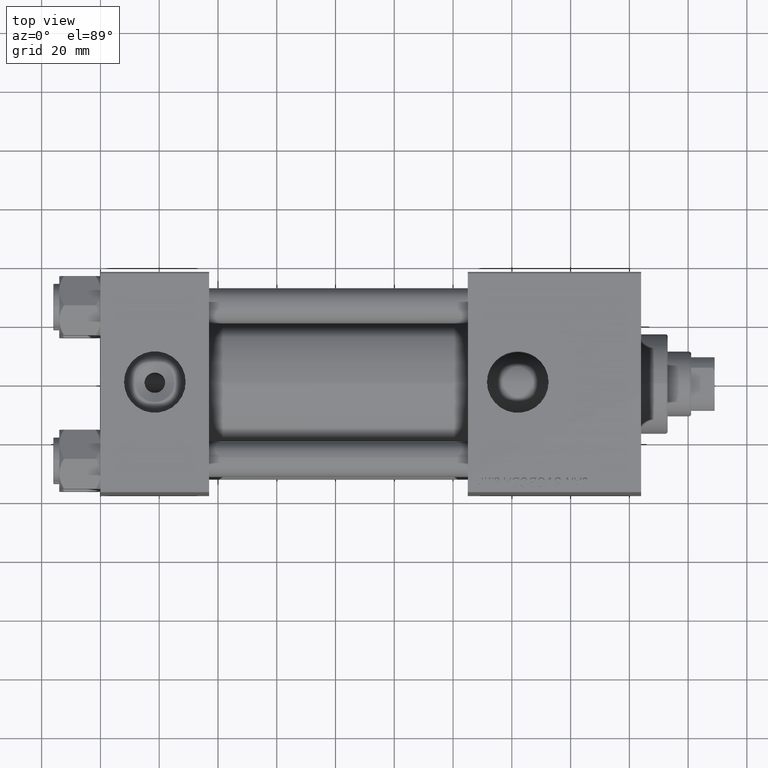
[diagram: clean part render]
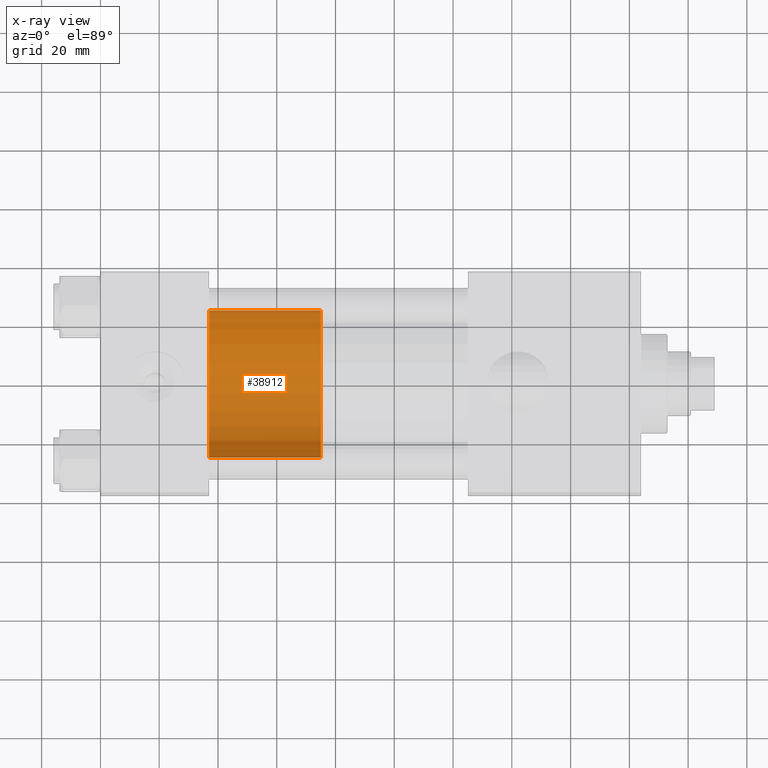
[diagram: x-ray — body ghosted, one internal face saturated and labeled with its STEP entity id]
A machine part, top view, then the same camera in x-ray: the body is ghosted and one INTERNAL B-rep face — a face not visible from any outside direction — is saturated and labeled: STEP entity #38912.
In plain terms, the highlighted cylindrical surface (partial cylindrical patch) has radius 25 mm, axis along (-1, 0, 0).
Its self-contained STEP definition (entity closure, byte-faithful):
#864 = VECTOR ( 'NONE', #27975, 1000.000000000000000 ) ;
#883 = ORIENTED_EDGE ( 'NONE', *, *, #45189, .T. ) ;
#2515 = CYLINDRICAL_SURFACE ( 'NONE', #35080, 25.00000000000000000 ) ;
#2615 = ORIENTED_EDGE ( 'NONE', *, *, #19286, .F. ) ;
#5581 = FACE_OUTER_BOUND ( 'NONE', #12223, .T. ) ;
#6487 = CARTESIAN_POINT ( 'NONE',  ( 25.00000000000000000, 3.061616997868383043E-15, 0.000000000000000000 ) ) ;
#10085 = DIRECTION ( 'NONE',  ( 0.000000000000000000, 0.000000000000000000, 1.000000000000000000 ) ) ;
#10696 = CARTESIAN_POINT ( 'NONE',  ( -25.00000000000000000, 0.000000000000000000, 38.00000000000000000 ) ) ;
#11587 = CIRCLE ( 'NONE', #47331, 25.00000000000000000 ) ;
#12223 = EDGE_LOOP ( 'NONE', ( #17193, #16168, #883, #2615 ) ) ;
#13492 = CARTESIAN_POINT ( 'NONE',  ( -25.00000000000000000, 0.000000000000000000, 38.00000000000000000 ) ) ;
#15285 = DIRECTION ( 'NONE',  ( 0.000000000000000000, 0.000000000000000000, 1.000000000000000000 ) ) ;
#16168 = ORIENTED_EDGE ( 'NONE', *, *, #37269, .T. ) ;
#17193 = ORIENTED_EDGE ( 'NONE', *, *, #30649, .F. ) ;
#19286 = EDGE_CURVE ( 'NONE', #43067, #36716, #21664, .T. ) ;
#21140 = DIRECTION ( 'NONE',  ( -1.000000000000000000, 0.000000000000000000, 0.000000000000000000 ) ) ;
#21664 = LINE ( 'NONE', #13492, #48083 ) ;
#27975 = DIRECTION ( 'NONE',  ( -0.000000000000000000, -0.000000000000000000, -1.000000000000000000 ) ) ;
#28708 = VERTEX_POINT ( 'NONE', #44660 ) ;
#29790 = CARTESIAN_POINT ( 'NONE',  ( 0.000000000000000000, 0.000000000000000000, 38.00000000000000000 ) ) ;
#30089 = CARTESIAN_POINT ( 'NONE',  ( 0.000000000000000000, 0.000000000000000000, 0.000000000000000000 ) ) ;
#30649 = EDGE_CURVE ( 'NONE', #28708, #43067, #33295, .T. ) ;
#32151 = CARTESIAN_POINT ( 'NONE',  ( -25.00000000000000000, 0.000000000000000000, 0.000000000000000000 ) ) ;
#33295 = CIRCLE ( 'NONE', #50264, 25.00000000000000000 ) ;
#35080 = AXIS2_PLACEMENT_3D ( 'NONE', #29790, #48101, #21140 ) ;
#36716 = VERTEX_POINT ( 'NONE', #32151 ) ;
#37269 = EDGE_CURVE ( 'NONE', #28708, #48716, #39170, .T. ) ;
#38912 = ADVANCED_FACE ( 'NONE', ( #5581 ), #2515, .T. ) ;
#39170 = LINE ( 'NONE', #39670, #864 ) ;
#39670 = CARTESIAN_POINT ( 'NONE',  ( 25.00000000000000000, 3.061616997868383043E-15, 38.00000000000000000 ) ) ;
#41915 = DIRECTION ( 'NONE',  ( 1.000000000000000000, 0.000000000000000000, 0.000000000000000000 ) ) ;
#43067 = VERTEX_POINT ( 'NONE', #10696 ) ;
#44660 = CARTESIAN_POINT ( 'NONE',  ( 25.00000000000000000, 3.061616997868383043E-15, 38.00000000000000000 ) ) ;
#44972 = CARTESIAN_POINT ( 'NONE',  ( 0.000000000000000000, 0.000000000000000000, 38.00000000000000000 ) ) ;
#45189 = EDGE_CURVE ( 'NONE', #48716, #36716, #11587, .T. ) ;
#45585 = DIRECTION ( 'NONE',  ( 1.000000000000000000, 0.000000000000000000, 0.000000000000000000 ) ) ;
#47331 = AXIS2_PLACEMENT_3D ( 'NONE', #30089, #15285, #45585 ) ;
#47886 = DIRECTION ( 'NONE',  ( -0.000000000000000000, -0.000000000000000000, -1.000000000000000000 ) ) ;
#48083 = VECTOR ( 'NONE', #47886, 1000.000000000000000 ) ;
#48101 = DIRECTION ( 'NONE',  ( -0.000000000000000000, -0.000000000000000000, -1.000000000000000000 ) ) ;
#48716 = VERTEX_POINT ( 'NONE', #6487 ) ;
#50264 = AXIS2_PLACEMENT_3D ( 'NONE', #44972, #10085, #41915 ) ;